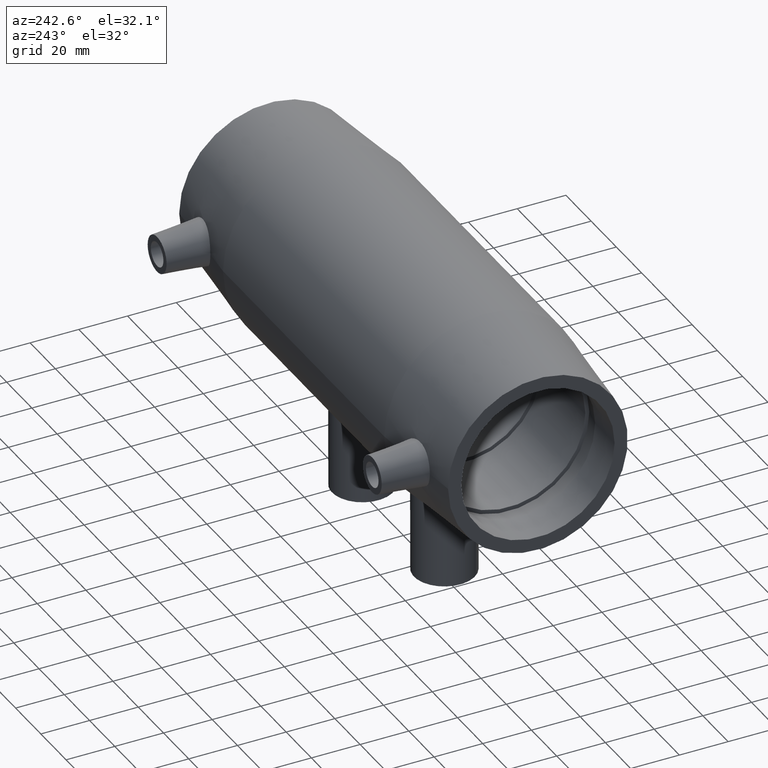
[diagram: clean part render]
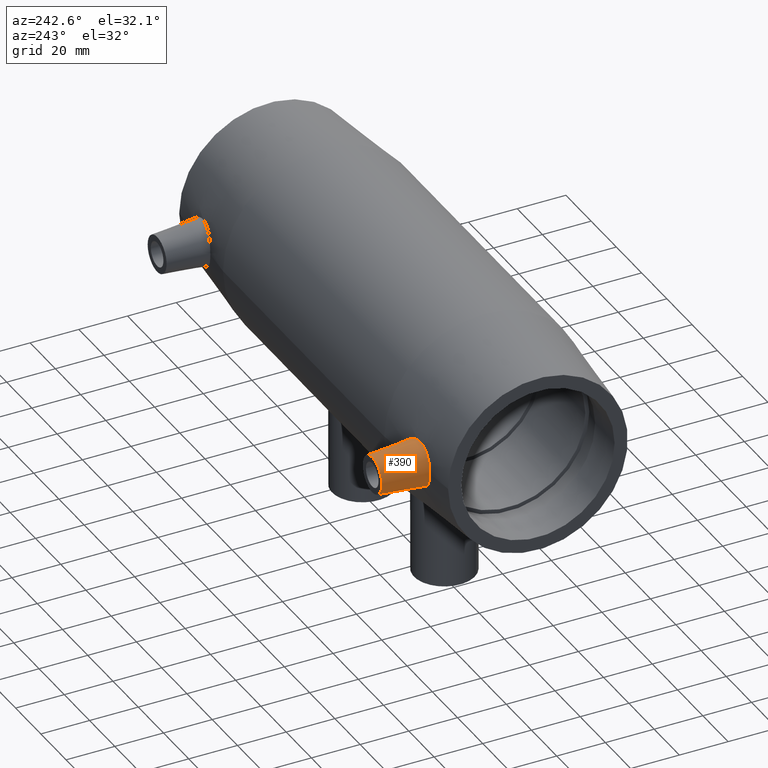
[diagram: same view with one face highlighted and labeled with its STEP entity id]
A machine part, auxiliary view. The second image highlights one B-rep face of the part: STEP entity #390.
In plain terms, the highlighted conical surface has half-angle 5 deg.
Its self-contained STEP definition (entity closure, byte-faithful):
#16=CONICAL_SURFACE('',#440,7.5,5.);
#50=FACE_BOUND('',#170,.T.);
#85=CIRCLE('',#436,7.5);
#120=FACE_OUTER_BOUND('',#169,.T.);
#169=EDGE_LOOP('',(#319));
#170=EDGE_LOOP('',(#320));
#214=B_SPLINE_CURVE_WITH_KNOTS('',3,(#826,#827,#828,#829,#830,#831,#832,
#833,#834,#835,#836,#837,#838,#839,#840,#841,#842,#843,#844,#845,#846,#847,
#848,#849,#850,#851,#852,#853,#854,#855,#856,#857,#858,#859),
 .UNSPECIFIED.,.T.,.F.,(4,2,2,2,2,2,2,2,2,2,2,2,2,2,2,2,4),(0.,0.338247719287762,
0.676495438575523,1.01658459775465,1.35667375693378,1.69676291611291,2.03685207529204,
2.3750997945798,2.71334751386756,3.06936961066205,3.42539170745654,3.77517379864653,
4.12495588983651,4.4747379810265,4.82452007221649,5.18054216901098,5.53656426580547),
 .UNSPECIFIED.);
#231=VERTEX_POINT('',#783);
#234=VERTEX_POINT('',#825);
#267=EDGE_CURVE('',#231,#231,#85,.T.);
#270=EDGE_CURVE('',#234,#234,#214,.T.);
#319=ORIENTED_EDGE('',*,*,#267,.T.);
#320=ORIENTED_EDGE('',*,*,#270,.F.);
#390=ADVANCED_FACE('',(#120,#50),#16,.T.);
#436=AXIS2_PLACEMENT_3D('',#784,#529,#530);
#440=AXIS2_PLACEMENT_3D('',#824,#537,#538);
#529=DIRECTION('center_axis',(0.,-1.,0.));
#530=DIRECTION('ref_axis',(1.,0.,0.));
#537=DIRECTION('center_axis',(0.,-1.,0.));
#538=DIRECTION('ref_axis',(1.,0.,0.));
#783=CARTESIAN_POINT('',(-92.7,57.,9.18485099360515E-16));
#784=CARTESIAN_POINT('Origin',(-85.2,57.,0.));
#824=CARTESIAN_POINT('Origin',(-85.2,57.,0.));
#825=CARTESIAN_POINT('',(-85.4831672617493,37.8263711285099,9.17310561938486));
#826=CARTESIAN_POINT('Ctrl Pts',(-85.4831672617491,37.82637112851,9.17310561938486));
#827=CARTESIAN_POINT('Ctrl Pts',(-86.6054737162965,37.7213982959446,9.14764912298936));
#828=CARTESIAN_POINT('Ctrl Pts',(-87.8007700714036,37.666104856619,8.89668174075734));
#829=CARTESIAN_POINT('Ctrl Pts',(-89.9915910784673,37.6650176261856,7.93456706222269));
#830=CARTESIAN_POINT('Ctrl Pts',(-90.987166640629,37.7160093406769,7.2235420150381));
#831=CARTESIAN_POINT('Ctrl Pts',(-92.5567598701681,37.8383539921926,5.60055533099966));
#832=CARTESIAN_POINT('Ctrl Pts',(-93.2360039237725,37.917652568284,4.57728565010471));
#833=CARTESIAN_POINT('Ctrl Pts',(-94.135777238011,38.0342151413606,2.34390134490362));
#834=CARTESIAN_POINT('Ctrl Pts',(-94.3562686347066,38.0687628778804,1.13363053059709));
#835=CARTESIAN_POINT('Ctrl Pts',(-94.3562686347066,38.0687628778804,-1.13363053059709));
#836=CARTESIAN_POINT('Ctrl Pts',(-94.135777238011,38.0342151413606,-2.34390134490362));
#837=CARTESIAN_POINT('Ctrl Pts',(-93.2360039237725,37.917652568284,-4.57728565010471));
#838=CARTESIAN_POINT('Ctrl Pts',(-92.5567598701681,37.8383539921926,-5.60055533099966));
#839=CARTESIAN_POINT('Ctrl Pts',(-90.987166640629,37.7160093406769,-7.2235420150381));
#840=CARTESIAN_POINT('Ctrl Pts',(-89.9915910784673,37.6650176261856,-7.93456706222269));
#841=CARTESIAN_POINT('Ctrl Pts',(-87.8007700714036,37.666104856619,-8.89668174075734));
#842=CARTESIAN_POINT('Ctrl Pts',(-86.6054737162965,37.7213982959447,-9.14764912298936));
#843=CARTESIAN_POINT('Ctrl Pts',(-84.3018853952068,37.9368601157973,-9.19989981401491));
#844=CARTESIAN_POINT('Ctrl Pts',(-83.0487854844971,38.1163640946757,-8.98152482946287));
#845=CARTESIAN_POINT('Ctrl Pts',(-80.7522875493204,38.5494739761632,-8.05116317295427));
#846=CARTESIAN_POINT('Ctrl Pts',(-79.7080732701226,38.7996214669498,-7.3395847867024));
#847=CARTESIAN_POINT('Ctrl Pts',(-78.0743872571477,39.2322845098078,-5.70282615049358));
#848=CARTESIAN_POINT('Ctrl Pts',(-77.3692580585788,39.4442977549567,-4.67267440459639));
#849=CARTESIAN_POINT('Ctrl Pts',(-76.4301925541448,39.7377645235518,-2.4044850766939));
#850=CARTESIAN_POINT('Ctrl Pts',(-76.1966403464478,39.8165205300367,-1.16594030396662));
#851=CARTESIAN_POINT('Ctrl Pts',(-76.1966403464478,39.8165205300367,1.16594030396662));
#852=CARTESIAN_POINT('Ctrl Pts',(-76.4301925541448,39.7377645235517,2.4044850766939));
#853=CARTESIAN_POINT('Ctrl Pts',(-77.3692580585788,39.4442977549567,4.67267440459639));
#854=CARTESIAN_POINT('Ctrl Pts',(-78.0743872571477,39.2322845098078,5.70282615049358));
#855=CARTESIAN_POINT('Ctrl Pts',(-79.7080732701226,38.7996214669498,7.3395847867024));
#856=CARTESIAN_POINT('Ctrl Pts',(-80.7522875493204,38.5494739761632,8.05116317295425));
#857=CARTESIAN_POINT('Ctrl Pts',(-83.0487854844971,38.1163640946757,8.98152482946286));
#858=CARTESIAN_POINT('Ctrl Pts',(-84.3018853952068,37.9368601157973,9.19989981401491));
#859=CARTESIAN_POINT('Ctrl Pts',(-85.4831672617491,37.82637112851,9.17310561938486));